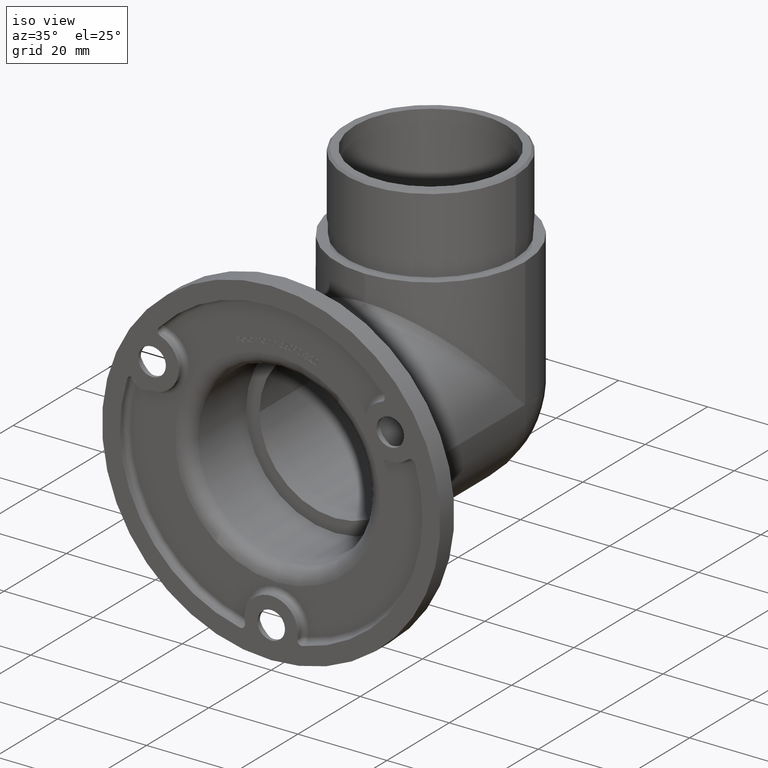
[diagram: clean part render]
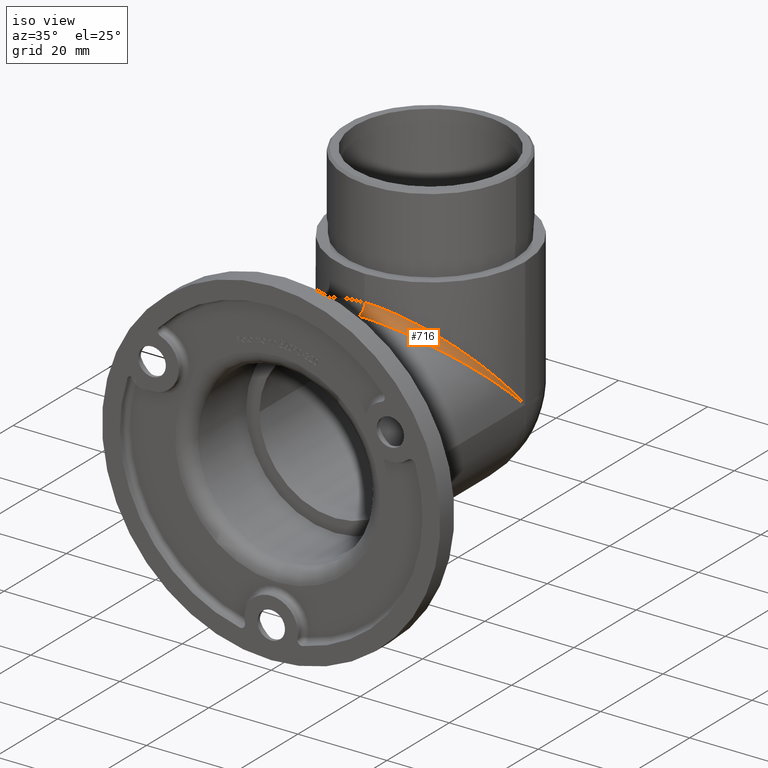
[diagram: same view with one face highlighted and labeled with its STEP entity id]
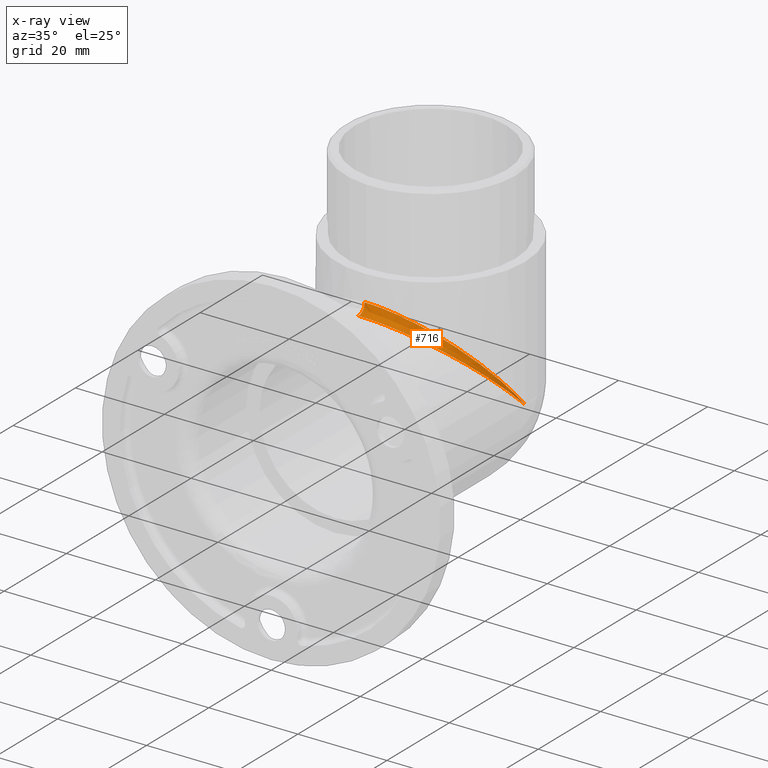
[diagram: x-ray of the same camera — body ghosted, the highlighted face saturated]
A machine part, iso view. The second image highlights one B-rep face of the part: STEP entity #716.
The next image is the same camera in x-ray: the body ghosted, the highlighted face saturated — about 0% of this face is hidden behind the body in this view.
In plain terms, the highlighted face is a freeform B-spline surface patch.
Its self-contained STEP definition (entity closure, byte-faithful):
#51 = CARTESIAN_POINT ( 'NONE',  ( 14.00952711251413300, 35.22819959020454700, 17.47857403336179200 ) ) ;
#152 = CARTESIAN_POINT ( 'NONE',  ( 21.19999999999999900, 37.60975464705583700, 12.41867247769037700 ) ) ;
#239 = CARTESIAN_POINT ( 'NONE',  ( 6.938893903907228400E-015, 30.00000000000002800, 23.19999999999999900 ) ) ;
#309 = DIRECTION ( 'NONE',  ( 1.816550055032317900E-015, 1.000000000000000000, 0.0000000000000000000 ) ) ;
#417 = EDGE_CURVE ( 'NONE', #12709, #2117, #6216, .T. ) ;
#716 = ADVANCED_FACE ( 'NONE', ( #8811 ), #15347, .F. ) ;
#909 = CARTESIAN_POINT ( 'NONE',  ( 5.496790451987839000, 30.67804704777847400, 22.45798624960042400 ) ) ;
#963 = CARTESIAN_POINT ( 'NONE',  ( 9.394805574655499900, 30.34707531780359000, 19.05525876131808600 ) ) ;
#1071 = CARTESIAN_POINT ( 'NONE',  ( 12.93178358775638900, 34.34371833748831900, 18.44649691369232900 ) ) ;
#1175 = CARTESIAN_POINT ( 'NONE',  ( 18.39802989916080700, 40.57560570779202200, 11.62669564053158700 ) ) ;
#1279 = CARTESIAN_POINT ( 'NONE',  ( 20.11723341721610200, 44.36902804251000300, 7.475403274238314700 ) ) ;
#2117 = VERTEX_POINT ( 'NONE', #13033 ) ;
#2164 = CARTESIAN_POINT ( 'NONE',  ( 5.019369729601357300, 30.55877446717451200, 20.64122553282817000 ) ) ;
#2312 = CARTESIAN_POINT ( 'NONE',  ( 16.85628166246710400, 38.26821641217686200, 14.15176317157798500 ) ) ;
#2370 = CARTESIAN_POINT ( 'NONE',  ( 15.52977217285925300, 36.68805543158070700, 14.51194456841774300 ) ) ;
#2464 = CARTESIAN_POINT ( 'NONE',  ( 20.00995508065327400, 44.04559446822179300, 7.154405531794158600 ) ) ;
#2522 = CARTESIAN_POINT ( 'NONE',  ( 19.05525876126244700, 41.80519442521019600, 10.28110798750189800 ) ) ;
#3695 = CARTESIAN_POINT ( 'NONE',  ( 21.20000000000000300, 51.20000000000006700, -4.154521083958561600E-014 ) ) ;
#3768 = CARTESIAN_POINT ( 'NONE',  ( 3.469446951953614200E-015, 28.00000000000002500, 21.19999999999999600 ) ) ;
#4579 = CARTESIAN_POINT ( 'NONE',  ( 2.775039201495983500, 28.14954923889055000, 21.06334293687542200 ) ) ;
#4685 = CARTESIAN_POINT ( 'NONE',  ( 2.498915087093459800, 30.10663392036893500, 21.09336607962836000 ) ) ;
#4775 = CARTESIAN_POINT ( 'NONE',  ( 12.33922796934226400, 33.89346880415578800, 17.30653119584129100 ) ) ;
#4834 = CARTESIAN_POINT ( 'NONE',  ( 15.97180040979541400, 35.86881938630593700, 14.00952711251420800 ) ) ;
#4885 = CARTESIAN_POINT ( 'NONE',  ( 21.20000000000000300, 51.20000000000007400, -3.983008634014273300E-014 ) ) ;
#4933 = CARTESIAN_POINT ( 'NONE',  ( 16.85628166246789300, 37.04823682842203400, 12.93178358782197200 ) ) ;
#4984 = CARTESIAN_POINT ( 'NONE',  ( 20.52195295218397300, 45.70320954782328500, 6.015355589177548100 ) ) ;
#5190 = CARTESIAN_POINT ( 'NONE',  ( 21.19999999999999900, 38.78132752230964500, 13.59024535294418700 ) ) ;
#5320 =( BOUNDED_CURVE ( )  B_SPLINE_CURVE ( 3, ( #12584, #152, #8751, #13674 ),
 .UNSPECIFIED., .F., .F. ) 
 B_SPLINE_CURVE_WITH_KNOTS ( ( 4, 4 ),
 ( 4.712388980384689700, 6.283185307179586200 ),
 .UNSPECIFIED. ) 
 CURVE ( )  GEOMETRIC_REPRESENTATION_ITEM ( )  RATIONAL_B_SPLINE_CURVE ( ( 1.000000000000000000, 0.8047378541243649400, 0.8047378541243649400, 1.000000000000000000 ) ) 
 REPRESENTATION_ITEM ( '' )  );
#5327 = CARTESIAN_POINT ( 'NONE',  ( 3.305793793842594800E-015, 28.00000000000002500, 23.19999999999999900 ) ) ;
#5486 = ORIENTED_EDGE ( 'NONE', *, *, #13566, .F. ) ;
#5866 = CARTESIAN_POINT ( 'NONE',  ( 9.394805574656494700, 32.14474123868234300, 20.85292468219643400 ) ) ;
#5976 = ORIENTED_EDGE ( 'NONE', *, *, #11841, .F. ) ;
#6168 = CARTESIAN_POINT ( 'NONE',  ( 21.04844642560306400, 48.28504849477047900, 2.914951505222223500 ) ) ;
#6216 =( BOUNDED_CURVE ( )  B_SPLINE_CURVE ( 3, ( #239, #15024, #5190, #13813 ),
 .UNSPECIFIED., .F., .T. ) 
 B_SPLINE_CURVE_WITH_KNOTS ( ( 4, 4 ),
 ( 0.0000000000000000000, 1.570796326794896800 ),
 .UNSPECIFIED. ) 
 CURVE ( )  GEOMETRIC_REPRESENTATION_ITEM ( )  RATIONAL_B_SPLINE_CURVE ( ( 1.000000000000000000, 0.8047378541243649400, 0.8047378541243649400, 1.000000000000000000 ) ) 
 REPRESENTATION_ITEM ( '' )  );
#6995 = CARTESIAN_POINT ( 'NONE',  ( 1.387552494966252300, 27.99999999999212000, 21.19999999999999600 ) ) ;
#7043 = CARTESIAN_POINT ( 'NONE',  ( 6.071532165918824000E-015, 30.00000000000002800, 21.19999999999999600 ) ) ;
#7090 = CARTESIAN_POINT ( 'NONE',  ( 1.387552494966252300, 30.00000000000002800, 23.20000000000790100 ) ) ;
#7150 = CARTESIAN_POINT ( 'NONE',  ( 5.996759602299134400E-015, 28.00000000000002500, 21.19999999999999600 ) ) ;
#7240 = CARTESIAN_POINT ( 'NONE',  ( 21.06334293691352900, 48.16316464763009700, 2.775039201304468700 ) ) ;
#7294 = CARTESIAN_POINT ( 'NONE',  ( 18.85615528659367600, 41.39058619074355500, 9.809413809240128400 ) ) ;
#7644 = CARTESIAN_POINT ( 'NONE',  ( 6.938893903907228400E-015, 30.00000000000002800, 23.19999999999999900 ) ) ;
#8214 = CARTESIAN_POINT ( 'NONE',  ( 2.775039201495983500, 30.13665706312459800, 23.05045076110947400 ) ) ;
#8265 = CARTESIAN_POINT ( 'NONE',  ( 1.256237457494945300, 29.99999999998422600, 21.20000000001579800 ) ) ;
#8372 = CARTESIAN_POINT ( 'NONE',  ( 5.496790451987839000, 28.74201375039960000, 20.52195295222154700 ) ) ;
#8481 = CARTESIAN_POINT ( 'NONE',  ( 21.20000000000000300, 49.74701082928818600, 1.452989170739289000 ) ) ;
#8529 = CARTESIAN_POINT ( 'NONE',  ( 20.45696784518840200, 45.44236526186986000, 5.757634738137583400 ) ) ;
#8559 = VERTEX_POINT ( 'NONE', #3768 ) ;
#8629 = CARTESIAN_POINT ( 'NONE',  ( 18.39802989916001900, 39.57330435946843700, 10.62439429220918500 ) ) ;
#8751 = CARTESIAN_POINT ( 'NONE',  ( 12.41867247769038600, 28.00000000000002500, 21.19999999999999200 ) ) ;
#8811 = FACE_OUTER_BOUND ( 'NONE', #11972, .T. ) ;
#9428 = CIRCLE ( 'NONE', #11411, 2.000000000000001800 ) ;
#9565 = CARTESIAN_POINT ( 'NONE',  ( 10.62439429227475300, 32.80197010088382800, 20.13369309714577000 ) ) ;
#9724 = CARTESIAN_POINT ( 'NONE',  ( 14.00952711251413300, 33.72142596663823600, 15.97180040979547600 ) ) ;
#10155 = DIRECTION ( 'NONE',  ( 1.000000000000000000, -1.816550055032318700E-015, 8.182657905550968400E-017 ) ) ;
#10526 = ORIENTED_EDGE ( 'NONE', *, *, #417, .F. ) ;
#10825 = CARTESIAN_POINT ( 'NONE',  ( 9.988651745174888000, 32.43406613853771600, 18.76593386146540300 ) ) ;
#10875 = CARTESIAN_POINT ( 'NONE',  ( 6.830971957623264100, 31.08276658283911300, 22.01508562632729100 ) ) ;
#10922 = CARTESIAN_POINT ( 'NONE',  ( 20.11723341721483400, 43.72459672576529500, 6.830971957493082900 ) ) ;
#11082 = CARTESIAN_POINT ( 'NONE',  ( 19.05525876126371500, 40.91889201249453800, 9.394805574786765600 ) ) ;
#11129 = CARTESIAN_POINT ( 'NONE',  ( 21.20000000000000600, 49.68154632610258400, 1.387552495107437400 ) ) ;
#11411 = AXIS2_PLACEMENT_3D ( 'NONE', #5327, #10155, #309 ) ;
#11841 = EDGE_CURVE ( 'NONE', #2117, #8559, #5320, .T. ) ;
#11972 = EDGE_LOOP ( 'NONE', ( #5976, #10526, #5486 ) ) ;
#12101 = CARTESIAN_POINT ( 'NONE',  ( 6.146304729538515200E-015, 30.00000000000002800, 23.19999999999999900 ) ) ;
#12167 = CARTESIAN_POINT ( 'NONE',  ( 12.93178358775778100, 32.75350308630468300, 16.85628166251078100 ) ) ;
#12261 = CARTESIAN_POINT ( 'NONE',  ( 21.06334293691299600, 48.42496079869289400, 3.036835352370850200 ) ) ;
#12305 = CARTESIAN_POINT ( 'NONE',  ( 15.97180040979541400, 37.19047288748581800, 15.33118061369409300 ) ) ;
#12366 = CARTESIAN_POINT ( 'NONE',  ( 13.46367097211149800, 34.74542641393095700, 16.45457358607072300 ) ) ;
#12584 = CARTESIAN_POINT ( 'NONE',  ( 21.20000000000000600, 51.20000000000002400, -3.469446951953614200E-015 ) ) ;
#12709 = VERTEX_POINT ( 'NONE', #7644 ) ;
#13033 = CARTESIAN_POINT ( 'NONE',  ( 21.20000000000000600, 51.20000000000002400, -3.469446951953614200E-015 ) ) ;
#13238 = CARTESIAN_POINT ( 'NONE',  ( 6.271616901288835400, 30.89566849695412600, 20.30433150304013900 ) ) ;
#13401 = CARTESIAN_POINT ( 'NONE',  ( 18.13704578583997700, 40.12179473625368300, 11.07820526374801800 ) ) ;
#13449 = CARTESIAN_POINT ( 'NONE',  ( 21.20000000000000300, 51.20000000000006700, -4.326033533902849900E-014 ) ) ;
#13566 = EDGE_CURVE ( 'NONE', #8559, #12709, #9428, .T. ) ;
#13568 = CARTESIAN_POINT ( 'NONE',  ( 16.48070755283332600, 37.77165204166149700, 13.42834795833678500 ) ) ;
#13674 = CARTESIAN_POINT ( 'NONE',  ( 3.469446951953614200E-015, 28.00000000000002500, 21.19999999999999600 ) ) ;
#13813 = CARTESIAN_POINT ( 'NONE',  ( 21.20000000000000600, 51.20000000000002400, -3.469446951953614200E-015 ) ) ;
#14560 = CARTESIAN_POINT ( 'NONE',  ( 10.62439429227335800, 31.06630690285727400, 18.39802989911713400 ) ) ;
#14612 = CARTESIAN_POINT ( 'NONE',  ( 6.830971957624260700, 29.18491437367272900, 20.11723341716049200 ) ) ;
#14670 = CARTESIAN_POINT ( 'NONE',  ( 20.52195295218344400, 45.18464441082155500, 5.496790452179411100 ) ) ;
#15024 = CARTESIAN_POINT ( 'NONE',  ( 12.41867247769038600, 30.00000000000002800, 23.19999999999999600 ) ) ;
#15347 =( BOUNDED_SURFACE ( )  B_SPLINE_SURFACE ( 3, 2, ( 
 ( #12101, #7043, #7150 ),
 ( #7090, #8265, #6995 ),
 ( #8214, #4685, #4579 ),
 ( #909, #2164, #8372 ),
 ( #10875, #13238, #14612 ),
 ( #5866, #15750, #963 ),
 ( #9565, #10825, #14560 ),
 ( #1071, #4775, #12167 ),
 ( #51, #12366, #9724 ),
 ( #12305, #2370, #4834 ),
 ( #2312, #13568, #4933 ),
 ( #1175, #13401, #8629 ),
 ( #2522, #7294, #11082 ),
 ( #1279, #2464, #10922 ),
 ( #4984, #8529, #14670 ),
 ( #12261, #6168, #7240 ),
 ( #15903, #8481, #11129 ),
 ( #13449, #3695, #4885 ) ),
 .UNSPECIFIED., .F., .F., .F. ) 
 B_SPLINE_SURFACE_WITH_KNOTS ( ( 4, 2, 2, 2, 2, 2, 2, 2, 4 ),
 ( 3, 3 ),
 ( 6.283185307179586200, 6.479534848028948500, 6.675884388878310800, 6.872233929727672200, 7.068583470577034500, 7.264933011426396800, 7.461282552275758200, 7.657632093125120500, 7.853981633974482800 ),
 ( 0.0000000000000000000, 1.000000000000000000 ),
 .UNSPECIFIED. ) 
 GEOMETRIC_REPRESENTATION_ITEM ( )  RATIONAL_B_SPLINE_SURFACE ( (
 ( 1.000000000000000000, 0.7071067811865475700, 1.000000000000000000),
 ( 1.000000000000000000, 0.7070717283934527800, 1.000000000000000000),
 ( 1.000000000000000000, 0.7117460025077136900, 1.000000000000000000),
 ( 1.000000000000000000, 0.7291288940356027700, 1.000000000000000000),
 ( 1.000000000000000000, 0.7418334178588552600, 1.000000000000000000),
 ( 1.000000000000000000, 0.7723968218383480100, 1.000000000000000000),
 ( 1.000000000000000000, 0.7902180086283140400, 1.000000000000000000),
 ( 1.000000000000000000, 0.8275942696150263600, 1.000000000000000000),
 ( 1.000000000000000000, 0.8471316604211823800, 1.000000000000000000),
 ( 1.000000000000000000, 0.8849191471476937100, 1.000000000000000000),
 ( 1.000000000000000000, 0.9031650994059942100, 1.000000000000000000),
 ( 1.000000000000000000, 0.9360421842804012000, 1.000000000000000000),
 ( 1.000000000000000000, 0.9506740353930578400, 1.000000000000000000),
 ( 1.000000000000000000, 0.9747108043692547200, 1.000000000000000000),
 ( 1.000000000000000000, 0.9841171504843182500, 1.000000000000000000),
 ( 1.000000000000000000, 0.9967613244634219200, 1.000000000000000000),
 ( 1.000000000000000000, 1.000009746408691900, 1.000000000000000000),
 ( 1.000000000000000000, 1.000000000000000000, 1.000000000000000000) ) ) 
 REPRESENTATION_ITEM ( '' )  SURFACE ( )  );
#15750 = CARTESIAN_POINT ( 'NONE',  ( 8.764187136388828800, 31.84070074371758700, 19.35929925628796200 ) ) ;
#15903 = CARTESIAN_POINT ( 'NONE',  ( 21.20000000000000600, 49.81244750489563700, 1.518453673897699900 ) ) ;